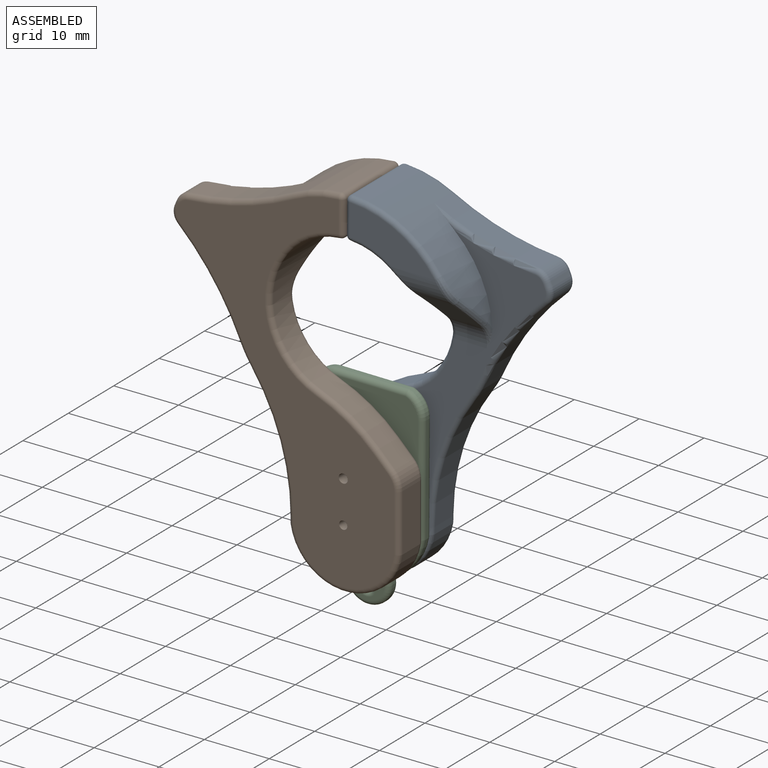
[diagram: assembled view]
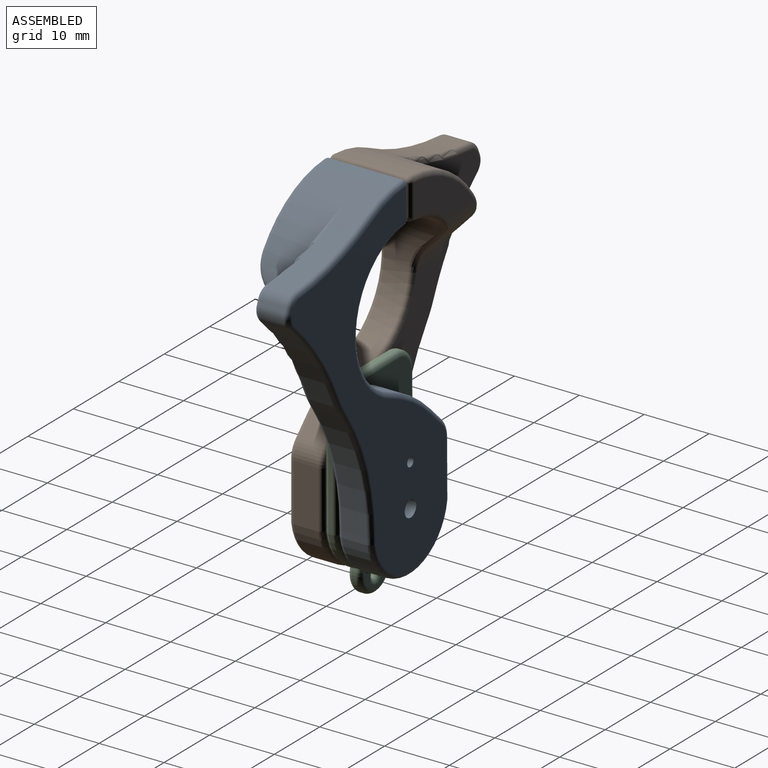
[diagram: assembled view, second angle]
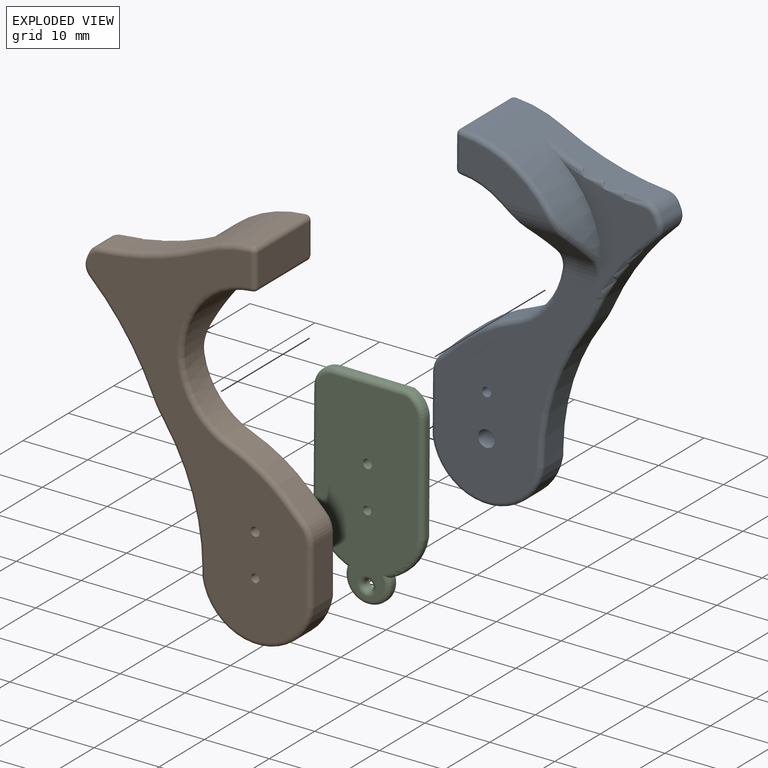
[diagram: exploded view]
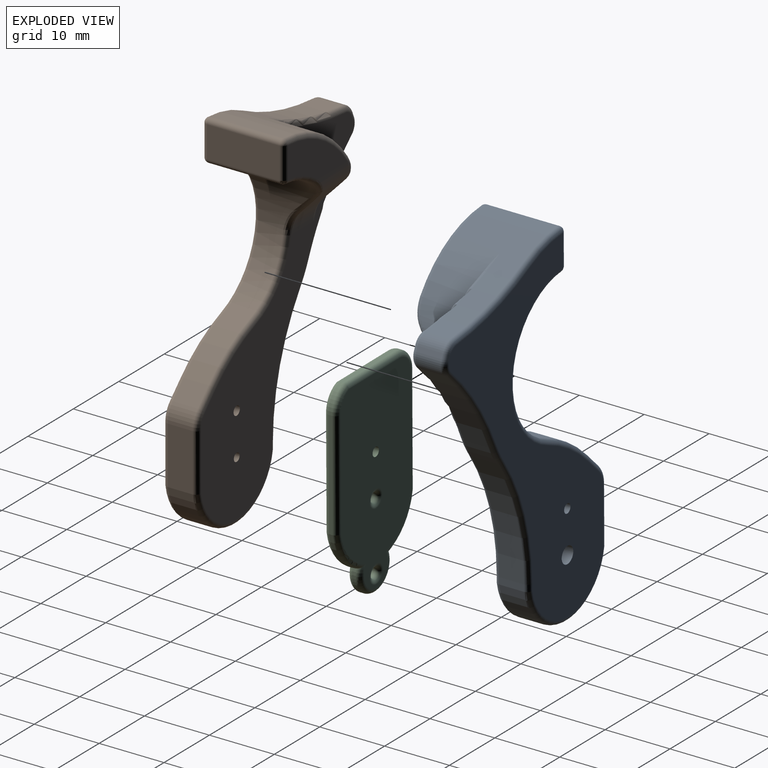
[diagram: exploded view, second angle]
ASSEMBLY  parts=3 mates=2
PART A: 70 faces, bbox 36.3x14.2x57.8 mm
  f0: cylinder r=17.71mm len=3.81mm, axis (0,1,0), area 12.9mm2, adj f17,f22,f36,f50
  f1: plane 38.23x25.76mm, normal (0,-1,0), area 409.2mm2, adj f11,f13,f14,f19,f47,f49,f50,f51
  f2: plane 3.81x0.71mm, normal (0.92,0,0.4), area 3mm2, adj f23,f24,f30,f43
  f3: cylinder r=17.71mm len=16.88mm, axis (0,1,0), area 180.8mm2, adj f11,f21,f25,f40,f58,f59,f60,f61
  f4: plane 11.18x4.83mm, normal (-1,0,0), area 54mm2, adj f62,f65,f66,f69
  f5: cylinder r=11.36mm len=21.99mm, axis (0,1,0), area 213.6mm2, adj f16,f27,f42,f44,f46,f48,f49,f69
  f6: plane 3.81x2.37mm, normal (-0.71,0,0.71), area 12.7mm2, adj f7,f16,f31,f53
  f7: cylinder r=3.81mm len=3.81mm, axis (0,1,0), area 11.4mm2, adj f6,f8,f33,f55
  f8: plane 8.85x3.81mm, normal (-1,0,0), area 33.7mm2, adj f7,f9,f35,f57
  f9: cylinder r=8.66mm len=17.11mm, axis (0,1,0), area 93.6mm2, adj f8,f10,f37,f56
  f10: plane 3.81x1.04mm, normal (1,0,0), area 3.9mm2, adj f9,f17,f39,f54
  f11: plane 16.27x14.15mm, normal (0,-1,0), area 80.6mm2, adj f1,f3,f40,f41,f43,f45,f47
  f12: plane 53.89x33.7mm, normal (0,1,0), area 618.1mm2, adj f13,f14,f25,f26,f27,f28,f29,f30
  f13: cylinder r=0.7mm len=5.33mm, axis (0,1,0), area 23.4mm2, adj f1,f12
  f14: cylinder r=1.27mm len=5.33mm, axis (0,1,0), area 42.6mm2, adj f1,f12
  f15: plane 13.12x7.21mm, normal (0,-1,0), area 54.9mm2, adj f20,f42,f58,f65
  f16: cylinder r=25.4mm len=9.08mm, axis (0,1,0), area 41.4mm2, adj f5,f6,f29,f51
  f17: cylinder r=33.6mm len=19.21mm, axis (0,1,0), area 77.9mm2, adj f0,f10,f38,f52
  f18: plane 6.67x4.39mm, normal (0,-0.71,-0.71), area 31.7mm2, adj f19,f20,f46,f60
  f19: cylinder r=5.08mm len=4.94mm, axis (1,0,0), area 19.5mm2, adj f1,f18,f48,f61
  f20: cylinder r=5.08mm len=8.34mm, axis (1,0,0), area 24.1mm2, adj f15,f18,f44,f59
  f21: cylinder r=42.68mm len=16.12mm, axis (0,-1,0), area 64.2mm2, adj f3,f23,f26,f40
  f22: cylinder r=42.68mm len=13.73mm, axis (0,-1,0), area 64.5mm2, adj f0,f24,f34,f47
  f23: cylinder r=2.29mm len=3.81mm, axis (0,-1,0), area 9.5mm2, adj f2,f21,f28,f41
  f24: cylinder r=2.29mm len=3.81mm, axis (0,-1,0), area 10.6mm2, adj f2,f22,f32,f45
  f25: torus R=16.95mm, axis (0,-1,0), area 8.9mm2, adj f3,f12,f26,f64
  f26: torus R=43.44mm, axis (0,-1,0), area 20.3mm2, adj f12,f21,f25,f28
  f27: torus R=12.12mm, axis (0,-1,0), area 37.9mm2, adj f5,f12,f29,f68
  f28: torus R=1.52mm, axis (0,-1,0), area 2.6mm2, adj f12,f23,f26,f30
  f29: torus R=24.64mm, axis (0,-1,0), area 12.9mm2, adj f12,f16,f27,f31
  f30: cylinder r=0.76mm len=1.01mm, axis (-0.4,0,0.92), area 0.9mm2, adj f2,f12,f28,f32
  f31: cylinder r=0.76mm len=2.91mm, axis (-0.71,0,-0.71), area 4mm2, adj f6,f12,f29,f33
  f32: torus R=1.52mm, axis (0,-1,0), area 2.9mm2, adj f12,f24,f30,f34
  f33: torus R=3.05mm, axis (0,-1,0), area 3.3mm2, adj f7,f12,f31,f35
  f34: torus R=43.44mm, axis (0,-1,0), area 20.4mm2, adj f12,f22,f32,f36
  f35: cylinder r=0.76mm len=8.85mm, axis (0,0,-1), area 10.6mm2, adj f8,f12,f33,f37
  f36: torus R=16.95mm, axis (0,-1,0), area 4mm2, adj f0,f12,f34,f38
  f37: torus R=7.89mm, axis (0,-1,0), area 28.4mm2, adj f9,f12,f35,f39
  f38: torus R=34.37mm, axis (0,-1,0), area 24.7mm2, adj f12,f17,f36,f39
  f39: cylinder r=0.76mm len=1.04mm, axis (0,0,1), area 1.2mm2, adj f10,f12,f37,f38
  f40: torus R=43.44mm, axis (0,-1,0), area 17.7mm2, adj f3,f11,f21,f41
  f41: torus R=1.52mm, axis (0,-1,0), area 2.6mm2, adj f11,f23,f40,f43
  f42: torus R=12.12mm, axis (0,-1,0), area 8mm2, adj f5,f15,f44,f67
  f43: cylinder r=0.76mm len=1.01mm, axis (0.4,0,-0.92), area 0.9mm2, adj f2,f11,f41,f45
  f44: bspline ~5.06x4.61mm, area 4.7mm2, adj f5,f20,f42,f46
  f45: torus R=1.52mm, axis (0,-1,0), area 2.9mm2, adj f11,f24,f43,f47
  f46: bspline ~4.93x4.51mm, area 6.3mm2, adj f5,f18,f44,f48
  f47: torus R=43.44mm, axis (0,-1,0), area 20.4mm2, adj f1,f11,f22,f45,f50
  f48: bspline ~5.86x3.14mm, area 4.8mm2, adj f5,f19,f46,f49
  f49: torus R=12.12mm, axis (0,-1,0), area 14.8mm2, adj f1,f5,f48,f51
  f50: torus R=16.95mm, axis (0,-1,0), area 4mm2, adj f0,f1,f47,f52
  f51: torus R=24.64mm, axis (0,-1,0), area 12.9mm2, adj f1,f16,f49,f53
  f52: torus R=34.37mm, axis (0,-1,0), area 24.7mm2, adj f1,f17,f50,f54
  f53: cylinder r=0.76mm len=2.91mm, axis (0.71,0,0.71), area 4mm2, adj f1,f6,f51,f55
  f54: cylinder r=0.76mm len=1.04mm, axis (0,0,-1), area 1.2mm2, adj f1,f10,f52,f56
  f55: torus R=3.05mm, axis (0,-1,0), area 3.3mm2, adj f1,f7,f53,f57
  f56: torus R=7.89mm, axis (0,-1,0), area 28.4mm2, adj f1,f9,f54,f57
  f57: cylinder r=0.76mm len=8.85mm, axis (0,0,1), area 10.6mm2, adj f1,f8,f55,f56
  f58: torus R=16.95mm, axis (0,-1,0), area 19.1mm2, adj f3,f15,f59,f63
  f59: bspline ~6.02x3.83mm, area 5.7mm2, adj f3,f20,f58,f60
  f60: bspline ~8.58x8.5mm, area 8.6mm2, adj f3,f18,f59,f61
  f61: bspline ~5.72x3.22mm, area 3.5mm2, adj f1,f3,f19,f60
  f62: cylinder r=0.76mm len=11.18mm, axis (0,1,0), area 13.8mm2, adj f3,f4,f63,f64
  f63: sphere r=0.76mm, area 0.9mm2, adj f58,f62,f65
  f64: sphere r=0.76mm, area 1.3mm2, adj f25,f62,f66
  f65: cylinder r=0.76mm len=4.83mm, axis (0,0,1), area 5.8mm2, adj f4,f15,f63,f67
  f66: cylinder r=0.76mm len=4.83mm, axis (0,0,-1), area 5.8mm2, adj f4,f12,f64,f68
  f67: sphere r=0.76mm, area 1.2mm2, adj f42,f65,f69
  f68: sphere r=0.76mm, area 0.5mm2, adj f27,f66,f69
  f69: cylinder r=0.76mm len=11.18mm, axis (0,1,0), area 12.8mm2, adj f4,f5,f67,f68
PART B: 70 faces, bbox 36.2x14.2x57.7 mm
  f0: cylinder r=17.69mm len=3.81mm, axis (0,1,0), area 13.4mm2, adj f17,f21,f35,f51
  f1: plane 16.21x14.17mm, normal (0,1,0), area 80.5mm2, adj f2,f10,f25,f26,f28,f30,f32
  f2: plane 38.18x25.73mm, normal (0,1,0), area 411.8mm2, adj f1,f13,f14,f19,f32,f34,f35,f36
  f3: plane 3.81x1.02mm, normal (-1,0,0), area 3.9mm2, adj f4,f17,f39,f49
  f4: cylinder r=8.65mm len=17.09mm, axis (0,1,0), area 93.5mm2, adj f3,f5,f41,f48
  f5: plane 8.84x3.81mm, normal (1,0,0), area 33.7mm2, adj f4,f6,f42,f47
  f6: cylinder r=3.81mm len=3.81mm, axis (0,1,0), area 11.4mm2, adj f5,f7,f40,f46
  f7: plane 3.81x2.36mm, normal (0.71,0,0.71), area 12.7mm2, adj f6,f16,f38,f45
  f8: cylinder r=11.35mm len=21.96mm, axis (0,1,0), area 213.3mm2, adj f16,f27,f29,f31,f33,f34,f43,f66
  f9: plane 11.18x4.83mm, normal (1,0,0), area 53.9mm2, adj f62,f65,f66,f69
  f10: cylinder r=17.69mm len=16.86mm, axis (0,1,0), area 179.9mm2, adj f1,f22,f25,f57,f58,f59,f60,f61
  f11: plane 3.81x0.71mm, normal (-0.92,0,0.4), area 3mm2, adj f23,f24,f28,f54
  f12: plane 53.82x33.59mm, normal (0,-1,0), area 620.4mm2, adj f13,f14,f43,f44,f45,f46,f47,f48
  f13: cylinder r=0.7mm len=5.33mm, axis (0,1,0), area 23.4mm2, adj f2,f12
  f14: cylinder r=0.64mm len=5.33mm, axis (0,1,0), area 21.3mm2, adj f2,f12
  f15: plane 13.1x7.19mm, normal (0,1,0), area 54.6mm2, adj f20,f27,f58,f69
  f16: cylinder r=25.4mm len=9.07mm, axis (0,1,0), area 41.4mm2, adj f7,f8,f36,f44
  f17: cylinder r=33.6mm len=19.2mm, axis (0,1,0), area 77.9mm2, adj f0,f3,f37,f50
  f18: plane 6.67x4.39mm, normal (0,0.71,-0.71), area 31.7mm2, adj f19,f20,f31,f60
  f19: cylinder r=5.08mm len=4.93mm, axis (-1,0,0), area 19.4mm2, adj f2,f18,f33,f61
  f20: cylinder r=5.08mm len=8.34mm, axis (-1,0,0), area 24.1mm2, adj f15,f18,f29,f59
  f21: cylinder r=42.68mm len=13.78mm, axis (0,-1,0), area 64.4mm2, adj f0,f24,f32,f52
  f22: cylinder r=42.68mm len=16.14mm, axis (0,-1,0), area 64.2mm2, adj f10,f23,f25,f56
  f23: cylinder r=2.29mm len=3.81mm, axis (0,-1,0), area 9.5mm2, adj f11,f22,f26,f55
  f24: cylinder r=2.29mm len=3.81mm, axis (0,-1,0), area 10.6mm2, adj f11,f21,f30,f53
  f25: torus R=43.44mm, axis (0,-1,0), area 17.7mm2, adj f1,f10,f22,f26
  f26: torus R=1.52mm, axis (0,-1,0), area 2.6mm2, adj f1,f23,f25,f28
  f27: torus R=12.11mm, axis (0,-1,0), area 8mm2, adj f8,f15,f29,f68
  f28: cylinder r=0.76mm len=1.02mm, axis (-0.4,0,-0.92), area 0.9mm2, adj f1,f11,f26,f30
  f29: bspline ~5.06x4.62mm, area 4.7mm2, adj f8,f20,f27,f31
  f30: torus R=1.52mm, axis (0,-1,0), area 2.9mm2, adj f1,f24,f28,f32
  f31: bspline ~4.93x4.51mm, area 6.3mm2, adj f8,f18,f29,f33
  f32: torus R=43.44mm, axis (0,-1,0), area 20.4mm2, adj f1,f2,f21,f30,f35
  f33: bspline ~5.86x3.14mm, area 4.8mm2, adj f8,f19,f31,f34
  f34: torus R=12.11mm, axis (0,-1,0), area 14.8mm2, adj f2,f8,f33,f36
  f35: torus R=16.93mm, axis (0,-1,0), area 4.1mm2, adj f0,f2,f32,f37
  f36: torus R=24.64mm, axis (0,-1,0), area 12.9mm2, adj f2,f16,f34,f38
  f37: torus R=34.37mm, axis (0,-1,0), area 24.7mm2, adj f2,f17,f35,f39
  f38: cylinder r=0.76mm len=2.9mm, axis (-0.71,0,0.71), area 4mm2, adj f2,f7,f36,f40
  f39: cylinder r=0.76mm len=1.02mm, axis (0,0,-1), area 1.2mm2, adj f2,f3,f37,f41
  f40: torus R=3.04mm, axis (0,-1,0), area 3.3mm2, adj f2,f6,f38,f42
  f41: torus R=7.88mm, axis (0,-1,0), area 28.4mm2, adj f2,f4,f39,f42
  f42: cylinder r=0.76mm len=8.84mm, axis (0,0,1), area 10.5mm2, adj f2,f5,f40,f41
  f43: torus R=12.11mm, axis (0,-1,0), area 37.9mm2, adj f8,f12,f44,f64
  f44: torus R=24.64mm, axis (0,-1,0), area 12.9mm2, adj f12,f16,f43,f45
  f45: cylinder r=0.76mm len=2.9mm, axis (0.71,0,-0.71), area 4mm2, adj f7,f12,f44,f46
  f46: torus R=3.04mm, axis (0,-1,0), area 3.3mm2, adj f6,f12,f45,f47
  f47: cylinder r=0.76mm len=8.84mm, axis (0,0,-1), area 10.5mm2, adj f5,f12,f46,f48
  f48: torus R=7.88mm, axis (0,-1,0), area 28.4mm2, adj f4,f12,f47,f49
  f49: cylinder r=0.76mm len=1.02mm, axis (0,0,1), area 1.2mm2, adj f3,f12,f48,f50
  f50: torus R=34.37mm, axis (0,-1,0), area 24.7mm2, adj f12,f17,f49,f51
  f51: torus R=16.93mm, axis (0,-1,0), area 4.1mm2, adj f0,f12,f50,f52
  f52: torus R=43.44mm, axis (0,-1,0), area 20.4mm2, adj f12,f21,f51,f53
  f53: torus R=1.52mm, axis (0,-1,0), area 2.9mm2, adj f12,f24,f52,f54
  f54: cylinder r=0.76mm len=1.02mm, axis (0.4,0,0.92), area 0.9mm2, adj f11,f12,f53,f55
  f55: torus R=1.52mm, axis (0,-1,0), area 2.6mm2, adj f12,f23,f54,f56
  f56: torus R=43.44mm, axis (0,-1,0), area 20.3mm2, adj f12,f22,f55,f57
  f57: torus R=16.93mm, axis (0,-1,0), area 8.8mm2, adj f10,f12,f56,f63
  f58: torus R=16.93mm, axis (0,-1,0), area 19mm2, adj f10,f15,f59,f67
  f59: bspline ~6.02x3.84mm, area 5.7mm2, adj f10,f20,f58,f60
  f60: bspline ~8.58x8.49mm, area 8.6mm2, adj f10,f18,f59,f61
  f61: bspline ~5.72x3.22mm, area 3.5mm2, adj f2,f10,f19,f60
  f62: cylinder r=0.76mm len=4.83mm, axis (0,0,-1), area 5.8mm2, adj f9,f12,f63,f64
  f63: sphere r=0.76mm, area 0.9mm2, adj f57,f62,f65
  f64: sphere r=0.76mm, area 0.9mm2, adj f43,f62,f66
  f65: cylinder r=0.76mm len=11.18mm, axis (0,1,0), area 13.8mm2, adj f9,f10,f63,f67
  f66: cylinder r=0.76mm len=11.18mm, axis (0,1,0), area 12.8mm2, adj f8,f9,f64,f68
  f67: sphere r=0.76mm, area 1.3mm2, adj f58,f65,f69
  f68: sphere r=0.76mm, area 0.6mm2, adj f27,f66,f69
  f69: cylinder r=0.76mm len=4.83mm, axis (0,0,1), area 5.8mm2, adj f9,f15,f67,f68
PART C: 32 faces, bbox 18.5x2x32.1 mm
  f0: cylinder r=3.88mm len=3.65mm, axis (0,1,0), area 2.4mm2, adj f1,f7,f16,f24
  f1: plane 11.46x0.51mm, normal (0,0,1), area 5.8mm2, adj f0,f2,f18,f26
  f2: cylinder r=3.3mm len=3.3mm, axis (0,1,0), area 2.5mm2, adj f1,f3,f20,f28
  f3: plane 17.02x0.51mm, normal (-1,0,0), area 8.6mm2, adj f2,f4,f19,f27
  f4: cylinder r=8.66mm len=6.71mm, axis (0,1,0), area 4.5mm2, adj f3,f5,f17,f25
  f5: cylinder r=3.47mm len=6.94mm, axis (0,1,0), area 6.6mm2, adj f4,f6,f15,f23
  f6: cylinder r=8.66mm len=6.67mm, axis (0,1,0), area 4.5mm2, adj f5,f7,f13,f21
  f7: plane 16.67x0.51mm, normal (1,0,0), area 8.5mm2, adj f0,f6,f14,f22
  f8: plane 30.01x15.59mm, normal (0,-1,0), area 387.9mm2, adj f10,f12,f21,f22,f23,f24,f25,f26
  f9: plane 30.01x15.59mm, normal (0,1,0), area 383mm2, adj f10,f13,f14,f15,f16,f17,f18,f19
  f10: cylinder r=0.7mm len=2.03mm, axis (0,1,0), area 8.9mm2, adj f8,f9
  f11: cylinder r=0.7mm len=1.4mm, axis (0,1,0), area 2.2mm2, adj f30,f31
  f12: cylinder r=0.64mm len=1.27mm, axis (0,1,0), area 5.1mm2, adj f8,f29
  f13: torus R=7.89mm, axis (0,-1,0), area 10.5mm2, adj f6,f9,f14,f15
  f14: cylinder r=0.76mm len=16.67mm, axis (0,0,1), area 19.9mm2, adj f7,f9,f13,f16
  f15: torus R=2.71mm, axis (0,-1,0), area 15mm2, adj f5,f9,f13,f17
  f16: torus R=3.12mm, axis (0,-1,0), area 5.2mm2, adj f0,f9,f14,f18
  f17: torus R=7.89mm, axis (0,-1,0), area 10.7mm2, adj f4,f9,f15,f19
  f18: cylinder r=0.76mm len=11.46mm, axis (-1,0,0), area 13.6mm2, adj f1,f9,f16,f20
  f19: cylinder r=0.76mm len=17.02mm, axis (0,0,-1), area 20.3mm2, adj f3,f9,f17,f20
  f20: torus R=2.54mm, axis (0,-1,0), area 5.4mm2, adj f2,f9,f18,f19
  f21: torus R=7.89mm, axis (0,-1,0), area 10.5mm2, adj f6,f8,f22,f23
  f22: cylinder r=0.76mm len=16.67mm, axis (0,0,-1), area 19.9mm2, adj f7,f8,f21,f24
  f23: torus R=2.71mm, axis (0,-1,0), area 15mm2, adj f5,f8,f21,f25
  f24: torus R=3.12mm, axis (0,-1,0), area 5.2mm2, adj f0,f8,f22,f26
  f25: torus R=7.89mm, axis (0,-1,0), area 10.7mm2, adj f4,f8,f23,f27
  f26: cylinder r=0.76mm len=11.46mm, axis (1,0,0), area 13.6mm2, adj f1,f8,f24,f28
  f27: cylinder r=0.76mm len=17.02mm, axis (0,0,1), area 20.3mm2, adj f3,f8,f25,f28
  f28: torus R=2.54mm, axis (0,-1,0), area 5.4mm2, adj f2,f8,f26,f27
  f29: torus R=1.4mm, axis (0,-1,0), area 6.9mm2, adj f9,f12
  f30: torus R=1.46mm, axis (0,-1,0), area 7.3mm2, adj f8,f11
  f31: torus R=1.46mm, axis (0,-1,0), area 7.3mm2, adj f9,f11
PLACE A rot(axis=(0,1,0),0.4deg) t=(15.31,-0.22,-33.02)mm
PLACE B t=(15.44,0.8,-33.02)mm
PLACE C rot(axis=(0,1,0),0.4deg) t=(15.31,0.29,-33.02)mm
MATE revolute B.f13 <-> C.f10  axis (0,1,0) through (15.44,-7.58,-13.66)mm
MATE revolute C.f10 <-> A.f13  axis (0,1,0) through (15.44,-5.55,-13.66)mm
